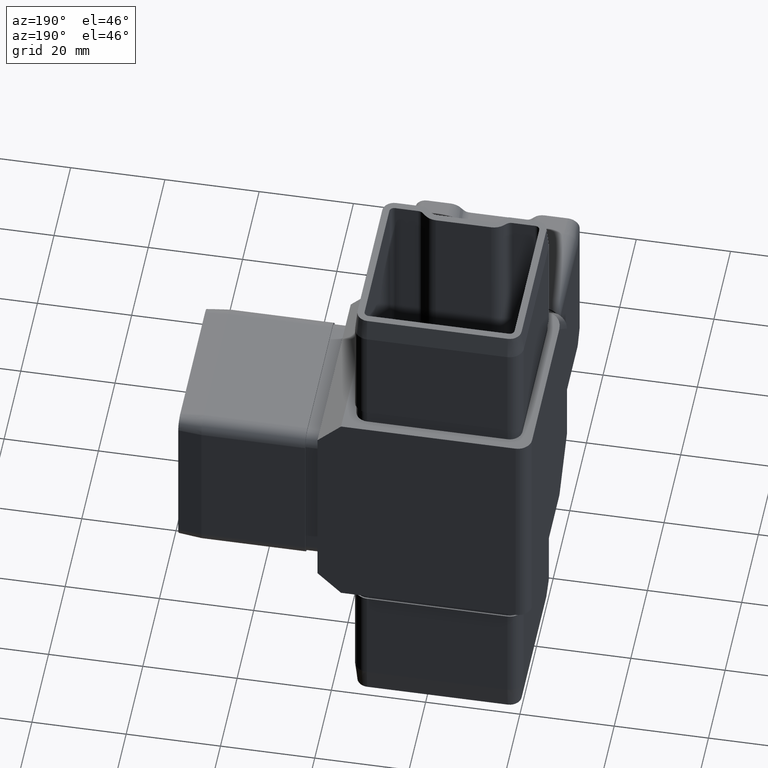
[diagram: clean part render]
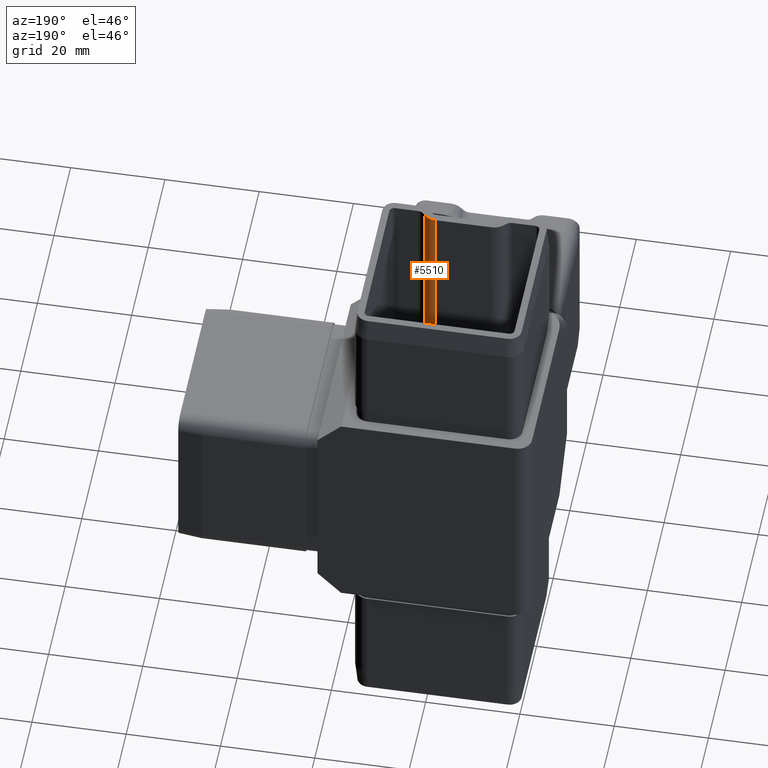
[diagram: same view with one face highlighted and labeled with its STEP entity id]
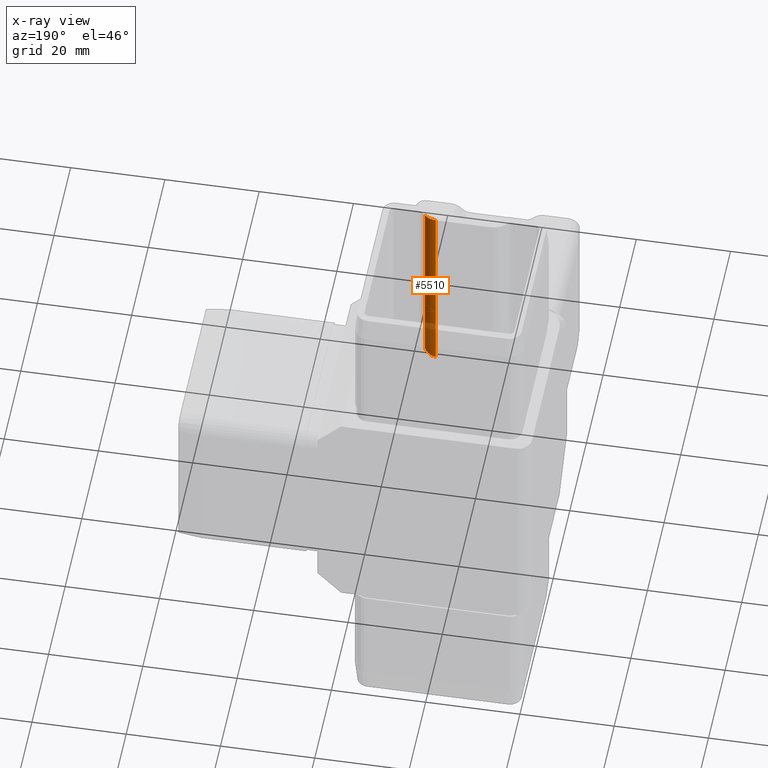
[diagram: x-ray of the same camera — body ghosted, the highlighted face saturated]
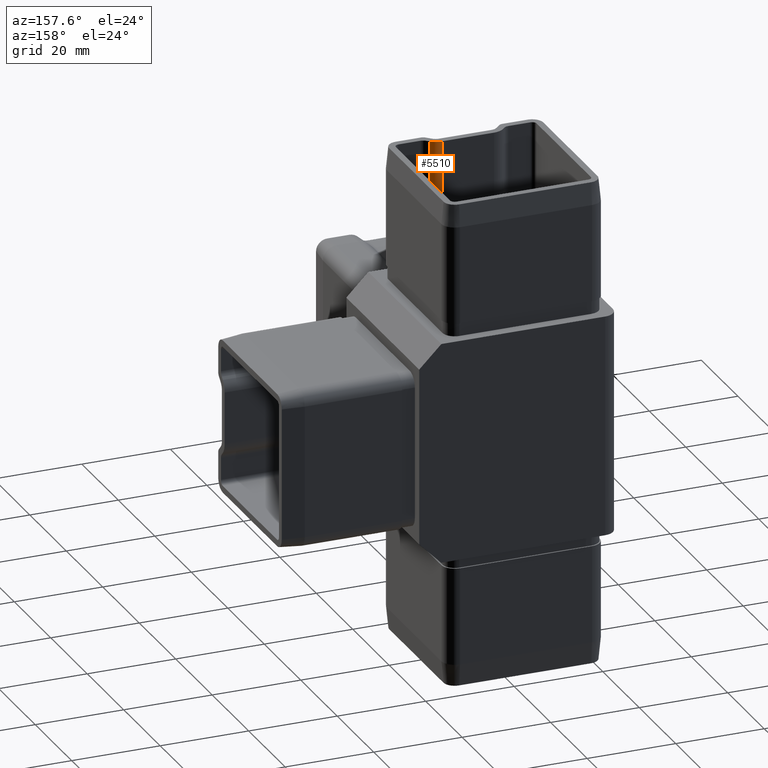
[diagram: same view with one face highlighted and labeled with its STEP entity id]
A machine part, auxiliary view. The second image highlights one B-rep face of the part: STEP entity #5510.
The next image is the same camera in x-ray: the body ghosted, the highlighted face saturated — about 22% of this face is hidden behind the body in this view.
A second angle (auxiliary view) of the same face is appended — the face is thin or edge-on in the first view.
In plain terms, the highlighted cylindrical surface (edge-blend (fillet) strip) has radius 3.5 mm, axis along (-0, -0, -1).
Its self-contained STEP definition (entity closure, byte-faithful):
#224 = VERTEX_POINT ( 'NONE', #3094 ) ;
#585 = DIRECTION ( 'NONE',  ( -0.0000000000000000000, -0.0000000000000000000, -1.000000000000000000 ) ) ;
#943 = CARTESIAN_POINT ( 'NONE',  ( 3.378679656440345600, -11.39999999999997700, 55.00000000000000000 ) ) ;
#1745 = VERTEX_POINT ( 'NONE', #12280 ) ;
#2515 = CARTESIAN_POINT ( 'NONE',  ( 5.853553390593284600, -12.42512626584706600, 55.00000000000000000 ) ) ;
#3094 = CARTESIAN_POINT ( 'NONE',  ( 3.378679656440345600, -11.39999999999997700, 55.00000000000000000 ) ) ;
#3540 = EDGE_CURVE ( 'NONE', #224, #17705, #17885, .T. ) ;
#3859 = CARTESIAN_POINT ( 'NONE',  ( 3.378679656440345600, -11.39999999999997700, 13.89999999999999000 ) ) ;
#4095 = VECTOR ( 'NONE', #7427, 1000.000000000000000 ) ;
#4497 = CIRCLE ( 'NONE', #7943, 3.499999999999998200 ) ;
#4631 = CARTESIAN_POINT ( 'NONE',  ( 5.188403598331389900, -11.75997647358516400, 14.25997647358517800 ) ) ;
#5244 = EDGE_CURVE ( 'NONE', #17705, #1745, #14131, .T. ) ;
#5510 = ADVANCED_FACE ( 'NONE', ( #17836 ), #7658, .T. ) ;
#5703 = EDGE_LOOP ( 'NONE', ( #11189, #5817, #9328, #6305 ) ) ;
#5817 = ORIENTED_EDGE ( 'NONE', *, *, #5244, .F. ) ;
#6305 = ORIENTED_EDGE ( 'NONE', *, *, #7642, .T. ) ;
#7427 = DIRECTION ( 'NONE',  ( -0.0000000000000000000, -0.0000000000000000000, -1.000000000000000000 ) ) ;
#7642 = EDGE_CURVE ( 'NONE', #224, #16581, #4497, .T. ) ;
#7658 = CYLINDRICAL_SURFACE ( 'NONE', #10965, 3.499999999999998200 ) ;
#7943 = AXIS2_PLACEMENT_3D ( 'NONE', #18624, #9520, #16896 ) ;
#9328 = ORIENTED_EDGE ( 'NONE', *, *, #3540, .F. ) ;
#9520 = DIRECTION ( 'NONE',  ( -0.0000000000000000000, -0.0000000000000000000, -1.000000000000000000 ) ) ;
#10965 = AXIS2_PLACEMENT_3D ( 'NONE', #17199, #585, #18813 ) ;
#11189 = ORIENTED_EDGE ( 'NONE', *, *, #17213, .T. ) ;
#12069 = CARTESIAN_POINT ( 'NONE',  ( 5.853553390593284600, -12.42512626584706600, 55.00000000000000000 ) ) ;
#12280 = CARTESIAN_POINT ( 'NONE',  ( 5.853553390593286400, -12.42512626584706800, 14.92512626584709100 ) ) ;
#13457 = VECTOR ( 'NONE', #17479, 1000.000000000000000 ) ;
#13699 = LINE ( 'NONE', #2515, #13457 ) ;
#14131 =( BOUNDED_CURVE ( )  B_SPLINE_CURVE ( 3, ( #17878, #19402, #4631, #18226 ),
 .UNSPECIFIED., .F., .F. ) 
 B_SPLINE_CURVE_WITH_KNOTS ( ( 4, 4 ),
 ( 3.141592653589787300, 3.926990816987244500 ),
 .UNSPECIFIED. ) 
 CURVE ( )  GEOMETRIC_REPRESENTATION_ITEM ( )  RATIONAL_B_SPLINE_CURVE ( ( 1.000000000000000000, 0.9492530216741901200, 0.9492530216741901200, 1.000000000000000000 ) ) 
 REPRESENTATION_ITEM ( '' )  );
#16581 = VERTEX_POINT ( 'NONE', #12069 ) ;
#16896 = DIRECTION ( 'NONE',  ( -1.000000000000000000, 0.0000000000000000000, 0.0000000000000000000 ) ) ;
#17199 = CARTESIAN_POINT ( 'NONE',  ( 3.378679656440366900, -14.89999999999997900, 55.00000000000000000 ) ) ;
#17213 = EDGE_CURVE ( 'NONE', #16581, #1745, #13699, .T. ) ;
#17479 = DIRECTION ( 'NONE',  ( -0.0000000000000000000, -0.0000000000000000000, -1.000000000000000000 ) ) ;
#17705 = VERTEX_POINT ( 'NONE', #3859 ) ;
#17836 = FACE_OUTER_BOUND ( 'NONE', #5703, .T. ) ;
#17878 = CARTESIAN_POINT ( 'NONE',  ( 3.378679656440345600, -11.39999999999997700, 13.89999999999999000 ) ) ;
#17885 = LINE ( 'NONE', #943, #4095 ) ;
#18226 = CARTESIAN_POINT ( 'NONE',  ( 5.853553390593286400, -12.42512626584706800, 14.92512626584709100 ) ) ;
#18624 = CARTESIAN_POINT ( 'NONE',  ( 3.378679656440366900, -14.89999999999997900, 55.00000000000000000 ) ) ;
#18813 = DIRECTION ( 'NONE',  ( -1.000000000000000000, 0.0000000000000000000, 0.0000000000000000000 ) ) ;
#19402 = CARTESIAN_POINT ( 'NONE',  ( 4.319343513666774800, -11.39999999999997200, 13.89999999999998600 ) ) ;